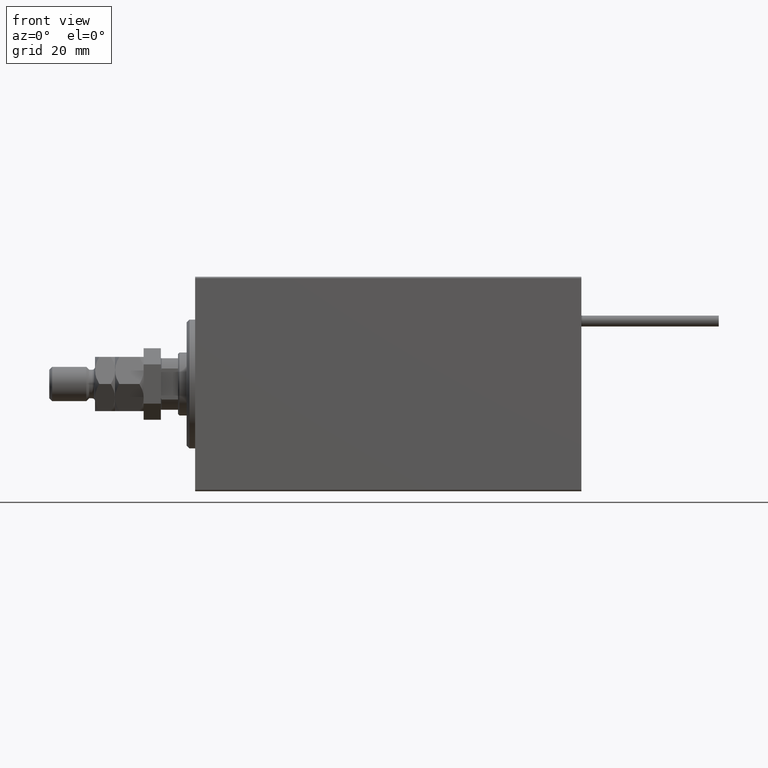
[diagram: clean part render]
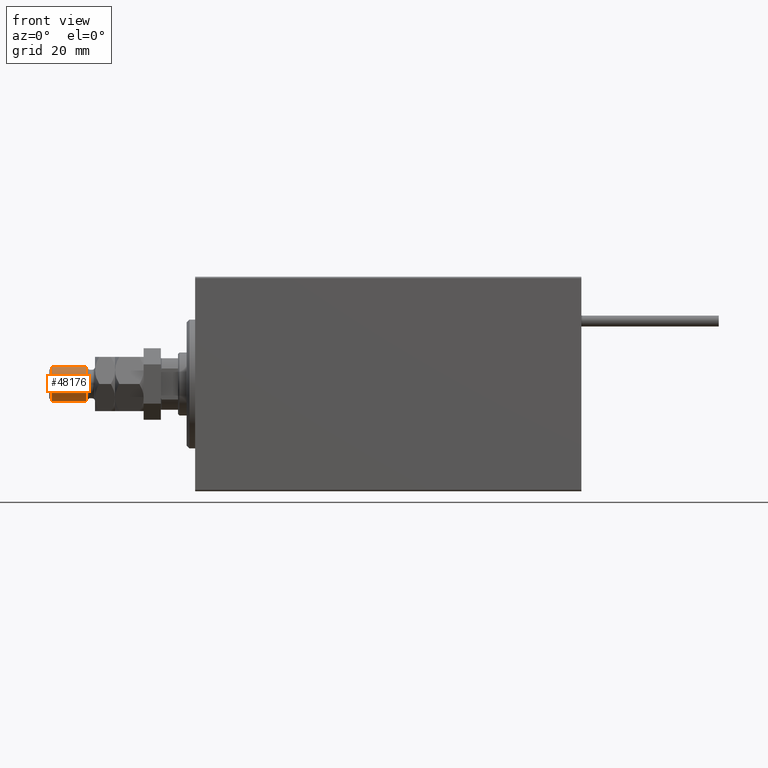
[diagram: same view with one face highlighted and labeled with its STEP entity id]
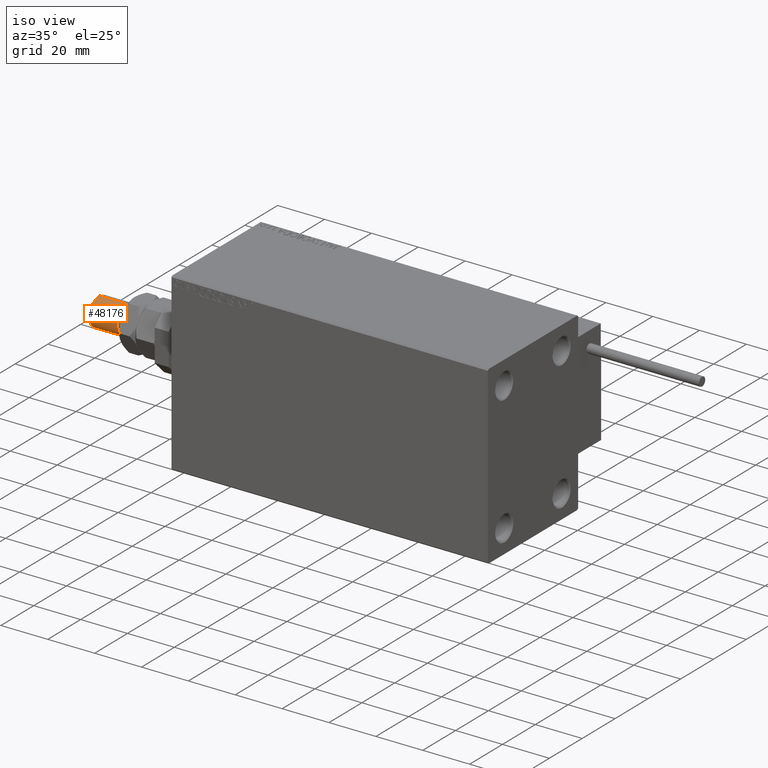
[diagram: same view with one face highlighted and labeled with its STEP entity id]
A machine part, front view. The second image highlights one B-rep face of the part: STEP entity #48176.
A second angle (iso view) of the same face is appended — the face is thin or edge-on in the first view.
In plain terms, the highlighted cylindrical surface (edge-blend (fillet) strip) has radius 6 mm, axis along (1, 0, -0).
Its self-contained STEP definition (entity closure, byte-faithful):
#9240 = EDGE_CURVE ( 'NONE', #43134, #28318, #42253, .T. ) ;
#10020 = EDGE_CURVE ( 'NONE', #28318, #10820, #10038, .T. ) ;
#10038 = CIRCLE ( 'NONE', #16883, 6.000000000000000888 ) ;
#10820 = VERTEX_POINT ( 'NONE', #44506 ) ;
#11062 = CARTESIAN_POINT ( 'NONE',  ( 0.000000000000000000, 0.000000000000000000, 20.00000000000000711 ) ) ;
#11353 = ORIENTED_EDGE ( 'NONE', *, *, #10020, .T. ) ;
#14005 = CARTESIAN_POINT ( 'NONE',  ( -6.000000000000000888, 0.000000000000000000, 20.00000000000000711 ) ) ;
#16883 = AXIS2_PLACEMENT_3D ( 'NONE', #11062, #35678, #40472 ) ;
#19629 = FACE_OUTER_BOUND ( 'NONE', #35749, .T. ) ;
#20224 = EDGE_CURVE ( 'NONE', #26099, #43134, #34134, .T. ) ;
#20652 = ORIENTED_EDGE ( 'NONE', *, *, #9240, .T. ) ;
#21605 = VECTOR ( 'NONE', #46224, 1000.000000000000000 ) ;
#26099 = VERTEX_POINT ( 'NONE', #33811 ) ;
#27124 = CYLINDRICAL_SURFACE ( 'NONE', #47984, 6.000000000000000888 ) ;
#28318 = VERTEX_POINT ( 'NONE', #14005 ) ;
#28484 = DIRECTION ( 'NONE',  ( 0.000000000000000000, 0.000000000000000000, -1.000000000000000000 ) ) ;
#29282 = CARTESIAN_POINT ( 'NONE',  ( 0.000000000000000000, 0.000000000000000000, 32.00000000000000000 ) ) ;
#32213 = DIRECTION ( 'NONE',  ( -0.000000000000000000, -0.000000000000000000, -1.000000000000000000 ) ) ;
#33371 = LINE ( 'NONE', #41671, #21605 ) ;
#33811 = CARTESIAN_POINT ( 'NONE',  ( 6.000000000000000888, 7.347880794884120722E-16, 32.00000000000000000 ) ) ;
#33962 = CARTESIAN_POINT ( 'NONE',  ( -6.000000000000000888, 0.000000000000000000, 33.00000000000000000 ) ) ;
#34134 = CIRCLE ( 'NONE', #39247, 6.000000000000000888 ) ;
#35678 = DIRECTION ( 'NONE',  ( -0.000000000000000000, -0.000000000000000000, 1.000000000000000000 ) ) ;
#35749 = EDGE_LOOP ( 'NONE', ( #44457, #50102, #20652, #11353 ) ) ;
#35972 = DIRECTION ( 'NONE',  ( -1.000000000000000000, 0.000000000000000000, 0.000000000000000000 ) ) ;
#39093 = VECTOR ( 'NONE', #42513, 1000.000000000000000 ) ;
#39247 = AXIS2_PLACEMENT_3D ( 'NONE', #29282, #28484, #44822 ) ;
#40472 = DIRECTION ( 'NONE',  ( 1.000000000000000000, 0.000000000000000000, 0.000000000000000000 ) ) ;
#41671 = CARTESIAN_POINT ( 'NONE',  ( 6.000000000000000888, 7.347880794884120722E-16, 33.00000000000000000 ) ) ;
#42253 = LINE ( 'NONE', #33962, #39093 ) ;
#42513 = DIRECTION ( 'NONE',  ( -0.000000000000000000, -0.000000000000000000, -1.000000000000000000 ) ) ;
#43134 = VERTEX_POINT ( 'NONE', #47965 ) ;
#43463 = CARTESIAN_POINT ( 'NONE',  ( 0.000000000000000000, 0.000000000000000000, 33.00000000000000000 ) ) ;
#44457 = ORIENTED_EDGE ( 'NONE', *, *, #50557, .F. ) ;
#44506 = CARTESIAN_POINT ( 'NONE',  ( 6.000000000000000888, 7.347880794884120722E-16, 20.00000000000000711 ) ) ;
#44822 = DIRECTION ( 'NONE',  ( 1.000000000000000000, 0.000000000000000000, 0.000000000000000000 ) ) ;
#46224 = DIRECTION ( 'NONE',  ( -0.000000000000000000, -0.000000000000000000, -1.000000000000000000 ) ) ;
#47965 = CARTESIAN_POINT ( 'NONE',  ( -6.000000000000000888, 0.000000000000000000, 32.00000000000000000 ) ) ;
#47984 = AXIS2_PLACEMENT_3D ( 'NONE', #43463, #32213, #35972 ) ;
#48176 = ADVANCED_FACE ( 'NONE', ( #19629 ), #27124, .T. ) ;
#50102 = ORIENTED_EDGE ( 'NONE', *, *, #20224, .T. ) ;
#50557 = EDGE_CURVE ( 'NONE', #26099, #10820, #33371, .T. ) ;